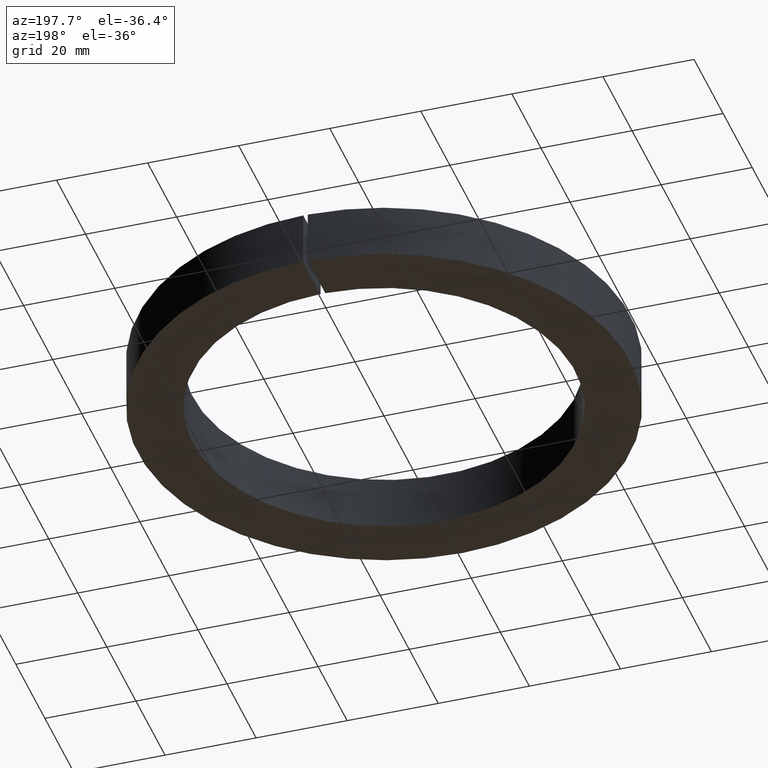
[diagram: clean part render]
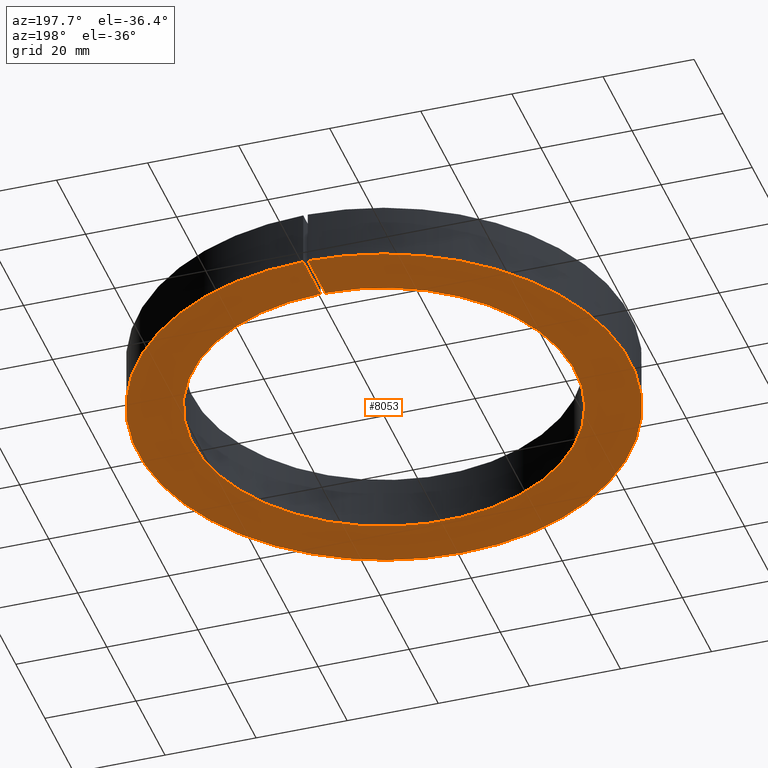
[diagram: same view with one face highlighted and labeled with its STEP entity id]
A machine part, auxiliary view. The second image highlights one B-rep face of the part: STEP entity #8053.
In plain terms, the highlighted planar face has unit normal (0, 0, 1).
Its self-contained STEP definition (entity closure, byte-faithful):
#162 = AXIS2_PLACEMENT_3D ( 'NONE', #11830, #10809, #10758 ) ;
#274 = ORIENTED_EDGE ( 'NONE', *, *, #9518, .T. ) ;
#827 = ORIENTED_EDGE ( 'NONE', *, *, #1562, .T. ) ;
#1076 = VERTEX_POINT ( 'NONE', #1933 ) ;
#1562 = EDGE_CURVE ( 'NONE', #7388, #11893, #5362, .T. ) ;
#1634 = LINE ( 'NONE', #12273, #10380 ) ;
#1933 = CARTESIAN_POINT ( 'NONE',  ( -0.5000000000000000000, 41.99702370406740900, -6.000000000000001800 ) ) ;
#2209 = CARTESIAN_POINT ( 'NONE',  ( -0.5000000000000000000, 53.99768513556854500, -6.000000000000001800 ) ) ;
#3133 = CARTESIAN_POINT ( 'NONE',  ( 0.5000000000000000000, 53.99768513556853800, -6.000000000000001800 ) ) ;
#3285 = DIRECTION ( 'NONE',  ( -1.000000000000000000, 0.0000000000000000000, 0.0000000000000000000 ) ) ;
#3307 = EDGE_CURVE ( 'NONE', #1076, #11893, #12971, .T. ) ;
#3323 = DIRECTION ( 'NONE',  ( 0.0000000000000000000, 1.000000000000000000, -0.0000000000000000000 ) ) ;
#3410 = DIRECTION ( 'NONE',  ( -0.0000000000000000000, -0.0000000000000000000, -1.000000000000000000 ) ) ;
#4283 = ORIENTED_EDGE ( 'NONE', *, *, #6681, .F. ) ;
#4928 = CARTESIAN_POINT ( 'NONE',  ( 0.5000000000000000000, 41.99702370406740900, -6.000000000000001800 ) ) ;
#5362 = CIRCLE ( 'NONE', #8590, 54.00000000000000000 ) ;
#5996 = CARTESIAN_POINT ( 'NONE',  ( 0.0000000000000000000, 0.0000000000000000000, -6.000000000000001800 ) ) ;
#6022 = CIRCLE ( 'NONE', #11446, 41.99999999999999300 ) ;
#6681 = EDGE_CURVE ( 'NONE', #10724, #1076, #6022, .T. ) ;
#6856 = ORIENTED_EDGE ( 'NONE', *, *, #3307, .F. ) ;
#7219 = CARTESIAN_POINT ( 'NONE',  ( 0.0000000000000000000, 0.0000000000000000000, -6.000000000000001800 ) ) ;
#7388 = VERTEX_POINT ( 'NONE', #3133 ) ;
#7731 = PLANE ( 'NONE',  #162 ) ;
#8053 = ADVANCED_FACE ( 'NONE', ( #10553 ), #7731, .F. ) ;
#8590 = AXIS2_PLACEMENT_3D ( 'NONE', #7219, #3410, #3285 ) ;
#8876 = DIRECTION ( 'NONE',  ( -0.0000000000000000000, -0.0000000000000000000, -1.000000000000000000 ) ) ;
#9518 = EDGE_CURVE ( 'NONE', #10724, #7388, #1634, .T. ) ;
#10380 = VECTOR ( 'NONE', #10399, 1000.000000000000000 ) ;
#10399 = DIRECTION ( 'NONE',  ( 0.0000000000000000000, 1.000000000000000000, -0.0000000000000000000 ) ) ;
#10553 = FACE_OUTER_BOUND ( 'NONE', #12462, .T. ) ;
#10724 = VERTEX_POINT ( 'NONE', #4928 ) ;
#10758 = DIRECTION ( 'NONE',  ( 1.000000000000000000, 0.0000000000000000000, -0.0000000000000000000 ) ) ;
#10809 = DIRECTION ( 'NONE',  ( 0.0000000000000000000, 0.0000000000000000000, 1.000000000000000000 ) ) ;
#11044 = DIRECTION ( 'NONE',  ( -1.000000000000000000, 0.0000000000000000000, 0.0000000000000000000 ) ) ;
#11446 = AXIS2_PLACEMENT_3D ( 'NONE', #5996, #8876, #11044 ) ;
#11830 = CARTESIAN_POINT ( 'NONE',  ( 0.0000000000000000000, -41.99999999999999300, -6.000000000000001800 ) ) ;
#11893 = VERTEX_POINT ( 'NONE', #2209 ) ;
#12273 = CARTESIAN_POINT ( 'NONE',  ( 0.5000000000000000000, 0.0000000000000000000, -6.000000000000001800 ) ) ;
#12350 = CARTESIAN_POINT ( 'NONE',  ( -0.5000000000000000000, 0.0000000000000000000, -6.000000000000001800 ) ) ;
#12462 = EDGE_LOOP ( 'NONE', ( #4283, #274, #827, #6856 ) ) ;
#12799 = VECTOR ( 'NONE', #3323, 1000.000000000000000 ) ;
#12971 = LINE ( 'NONE', #12350, #12799 ) ;